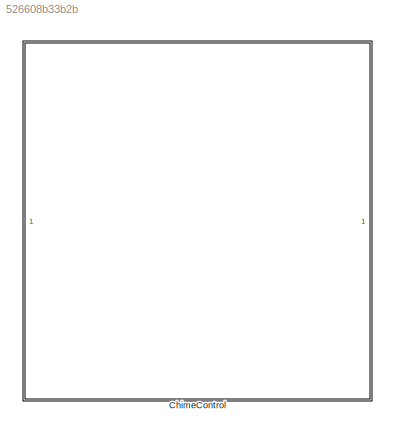
MODEL slx_526608b33b2b
KIND library
CONFIG AbsTol = auto
CONFIG EnableMultiTasking = off
CONFIG FixedStep = auto
CONFIG MaxStep = auto
CONFIG MinStep = auto
CONFIG RelTol = 1e-3
CONFIG SampleTimeConstraint = Unconstrained
CONFIG SolverName = VariableStepAuto
CONFIG StartTime = 0.0
CONFIG StopTime = 10.0
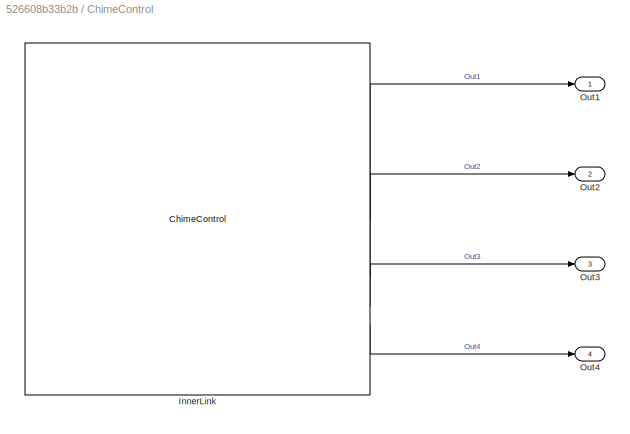
BLOCK [SubSystem] ChimeControl
BLOCK [Reference] ChimeControl/InnerLink  REF=ChimeControlLibBtc/ChimeControl
  SourceBlock = ChimeControlLibBtc/ChimeControl
  SourceProductName = Bose Blocklib
  SourceType = Chimes ChimeControl
BLOCK [Outport] ChimeControl/Out1
BLOCK [Outport] ChimeControl/Out2
  Port = 2
BLOCK [Outport] ChimeControl/Out3
  Port = 3
BLOCK [Outport] ChimeControl/Out4
  Port = 4
LINE ChimeControl/InnerLink:1 -> ChimeControl/Out1:1
LINE ChimeControl/InnerLink:2 -> ChimeControl/Out2:1
LINE ChimeControl/InnerLink:3 -> ChimeControl/Out3:1
LINE ChimeControl/InnerLink:4 -> ChimeControl/Out4:1
